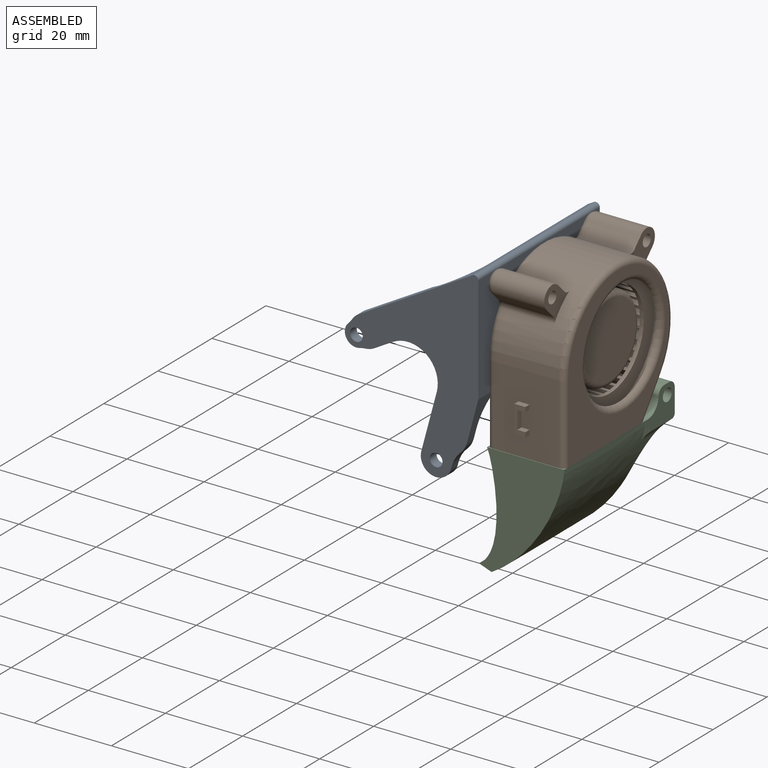
[diagram: assembled view]
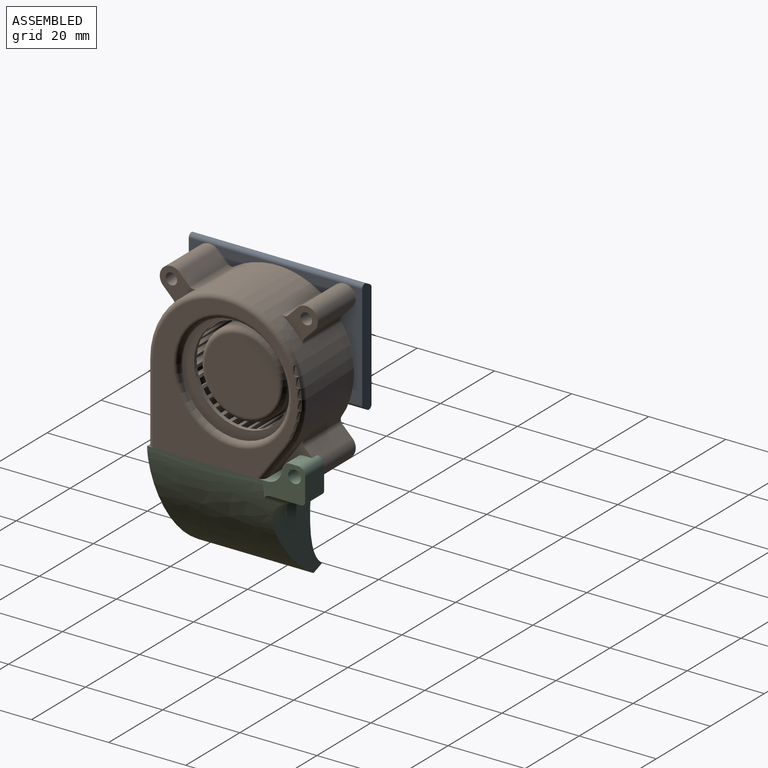
[diagram: assembled view, second angle]
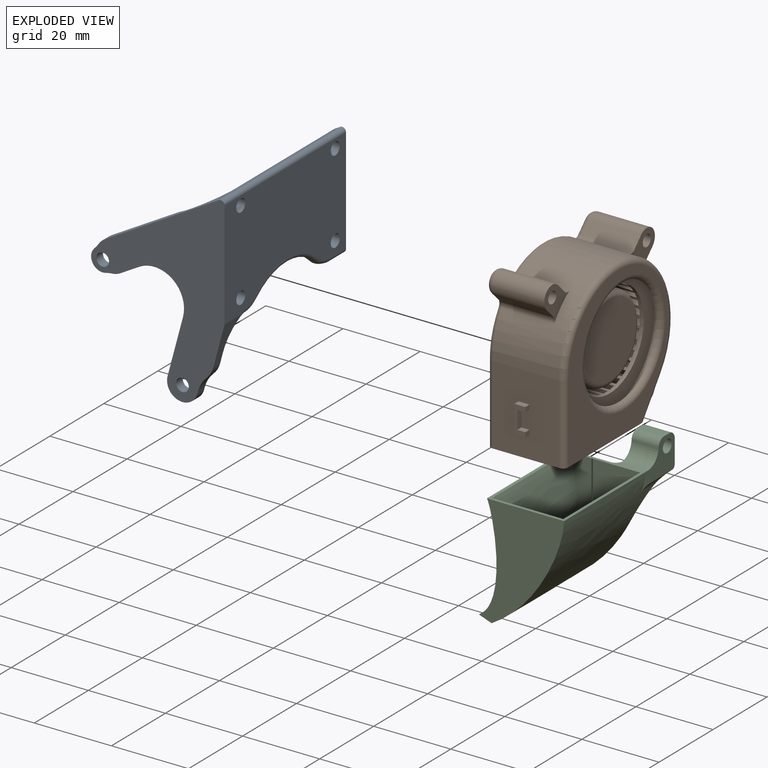
[diagram: exploded view]
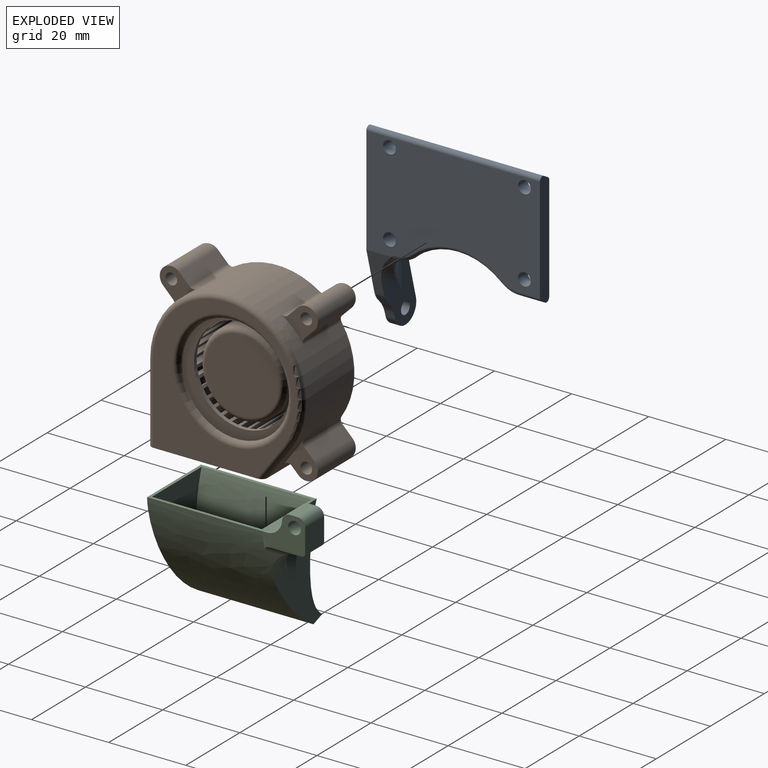
[diagram: exploded view, second angle]
ASSEMBLY  parts=3 mates=2
PART A: 46 faces, bbox 41.4x45.4x41.9 mm
  f0: plane 36.5x23.66mm, normal (-0.87,0,0.5), area 846.3mm2, adj f4,f16,f20,f21,f31,f32,f33,f34
  f1: plane 5.95x1.69mm, normal (0,0,-1), area 9.4mm2, adj f16,f23,f31,f37
  f2: plane 45x34.08mm, normal (0,0,1), area 158.3mm2, adj f5,f15,f16,f25,f43,f44,f45
  f3: plane 45x24.04mm, normal (0.87,0,-0.5), area 1087.5mm2, adj f15,f16,f18,f19,f20,f21,f37,f38
  f4: cylinder r=6mm len=37.16mm, axis (-0.5,0,-0.87), area 266.9mm2, adj f0,f5,f18,f19,f35,f36,f44
  f5: plane 39.15x30.45mm, normal (0,1,0), area 367.9mm2, adj f2,f4,f6,f7,f8,f9,f10,f11
  f6: cylinder r=3mm len=5.8mm, axis (0,1,0), area 19.7mm2, adj f5,f15,f27,f28
  f7: plane 5.65x2.5mm, normal (0,0,-1), area 14.1mm2, adj f5,f8,f15,f26
  f8: cylinder r=7.74mm len=13.22mm, axis (0,1,0), area 45.6mm2, adj f5,f7,f9,f15
  f9: plane 10.95x10.95mm, normal (-0.71,0,0.71), area 38.7mm2, adj f5,f8,f10,f15
  f10: cylinder r=4mm len=6.83mm, axis (0,1,0), area 31.4mm2, adj f5,f9,f11,f15
  f11: plane 2.5x0.49mm, normal (0.71,0,-0.71), area 1.7mm2, adj f5,f10,f15,f29
  f12: plane 8.2x8.2mm, normal (0.71,0,-0.71), area 37.5mm2, adj f5,f15,f17,f30,f40,f42
  f13: cylinder r=1.65mm len=3.3mm, axis (0,1,0), area 25.9mm2, adj f5,f15
  f14: cylinder r=1.65mm len=3.3mm, axis (0,1,0), area 25.9mm2, adj f5,f15
  f15: plane 41.08x39mm, normal (0,-1,0), area 707.4mm2, adj f2,f3,f6,f7,f8,f9,f10,f11
  f16: plane 25.66x17.35mm, normal (0,1,0), area 101.2mm2, adj f0,f1,f2,f3,f31,f37,f43,f45
  f17: cylinder r=6mm len=13.81mm, axis (1,0,0), area 38.3mm2, adj f5,f12,f24,f36,f42
  f18: cylinder r=1.65mm len=6.07mm, axis (0.87,0,-0.5), area 43.7mm2, adj f3,f4,f44
  f19: cylinder r=1.65mm len=5.12mm, axis (0.87,0,-0.5), area 41.6mm2, adj f3,f4
  f20: cylinder r=1.65mm len=4.65mm, axis (0.87,0,-0.5), area 35.9mm2, adj f0,f3,f43
  f21: cylinder r=1.65mm len=4.65mm, axis (0.87,0,-0.5), area 35.9mm2, adj f0,f3
  f22: cylinder r=16.95mm len=23.54mm, axis (0.87,0,-0.5), area 36.7mm2, adj f23,f24,f33,f39
  f23: bspline ~12.23x8.27mm, area 8.2mm2, adj f1,f22,f32,f38
  f24: bspline ~10.38x6.29mm, area 7.8mm2, adj f17,f22,f34,f35,f41
  f25: cylinder r=5mm len=2.5mm, axis (0,1,0), area 5.8mm2, adj f2,f5,f15,f27
  f26: cylinder r=5mm len=2.5mm, axis (0,1,0), area 5.8mm2, adj f5,f7,f15,f28
  f27: cylinder r=8mm len=2.5mm, axis (0,-1,0), area 4.1mm2, adj f5,f6,f15,f25
  f28: cylinder r=8mm len=2.5mm, axis (0,-1,0), area 4.1mm2, adj f5,f6,f15,f26
  f29: cylinder r=8mm len=3.85mm, axis (0,-1,0), area 11.2mm2, adj f5,f11,f15,f30
  f30: cylinder r=6mm len=2.89mm, axis (0,-1,0), area 8.4mm2, adj f5,f12,f15,f29
  f31: cylinder r=1mm len=5.15mm, axis (0,-1,0), area 10.8mm2, adj f0,f1,f16,f32
  f32: bspline ~6.8x3.98mm, area 9mm2, adj f0,f23,f31,f33
  f33: torus R=17.95mm, axis (0.87,0,-0.5), area 41.7mm2, adj f0,f22,f32,f34
  f34: bspline ~4.86x3.58mm, area 5.9mm2, adj f0,f24,f33,f35
  f35: bspline ~3.83x2.41mm, area 2mm2, adj f4,f24,f34,f36
  f36: bspline ~12.11x7.49mm, area 8.9mm2, adj f4,f17,f35
  f37: cylinder r=1mm len=5.95mm, axis (0,1,0), area 6.2mm2, adj f1,f3,f16,f38
  f38: bspline ~6.29x2.41mm, area 6mm2, adj f3,f23,f37,f39
  f39: torus R=17.95mm, axis (0.87,0,-0.5), area 38.7mm2, adj f3,f22,f38,f41
  f40: cylinder r=1mm len=6.26mm, axis (0,-1,0), area 1.6mm2, adj f3,f12,f15,f42
  f41: bspline ~5.25x1.98mm, area 5.7mm2, adj f3,f24,f39,f42
  f42: bspline ~4.65x2.3mm, area 2.9mm2, adj f3,f12,f17,f40,f41
  f43: cylinder r=1mm len=36.5mm, axis (0,1,0), area 38mm2, adj f0,f2,f16,f20,f44
  f44: bspline ~13.28x7.31mm, area 15.7mm2, adj f2,f4,f5,f18,f43
  f45: cylinder r=1mm len=45mm, axis (0,-1,0), area 94.2mm2, adj f2,f3,f15,f16
PART B: 208 faces, bbox 44x43.6x20.4 mm
  f0: cylinder r=5mm len=10mm, axis (0,0,-1), area 31.4mm2, adj f11,f59
  f1: plane 17.2x8.54mm, normal (0.8,-0.59,0), area 78mm2, adj f2,f3,f26,f27,f28,f55
  f2: cylinder r=20.14mm len=40.27mm, axis (0,0,-1), area 1067.4mm2, adj f1,f4,f16,f21,f26,f33,f35,f36
  f3: plane 30.46x20.43mm, normal (0,-1,0), area 136.2mm2, adj f1,f4,f5,f6,f7,f8,f10,f11
  f4: plane 20.5x17.2mm, normal (-1,0,0), area 341.9mm2, adj f2,f3,f42,f53,f199,f200,f201,f202
  f5: plane 39.24x37.47mm, normal (0,0,1), area 494.7mm2, adj f3,f53,f54,f55,f56
  f6: plane 39.6x38.2mm, normal (0,0,-1), area 1295.8mm2, adj f3,f14,f20,f25,f27,f29,f30,f31
  f7: plane 20.5x17.2mm, normal (1,0,0), area 352.6mm2, adj f3,f9,f10,f11
  f8: plane 17.2x9.37mm, normal (-0.8,0.59,0), area 200.4mm2, adj f3,f9,f10,f11
  f9: cylinder r=18.74mm len=37.47mm, axis (0,0,-1), area 1217.2mm2, adj f7,f8,f10,f11
  f10: plane 39.24x37.47mm, normal (0,0,-1), area 624mm2, adj f3,f7,f8,f9,f56
  f11: plane 39.24x37.47mm, normal (0,0,1), area 1161.2mm2, adj f0,f3,f7,f8,f9
  f12: plane 13.6x2.59mm, normal (-0.71,-0.71,0), area 49.9mm2, adj f15,f16,f44,f50
  f13: plane 13.6x2.59mm, normal (0.71,0.71,0), area 49.9mm2, adj f15,f16,f47,f51
  f14: cylinder r=1.5mm len=15mm, axis (0,0,-1), area 141.4mm2, adj f6,f16
  f15: cylinder r=3mm len=13.6mm, axis (0,0,-1), area 128.2mm2, adj f12,f13,f16,f52
  f16: plane 9.47x9.47mm, normal (0,0,1), area 35.7mm2, adj f2,f12,f13,f14,f15,f44,f47
  f17: plane 13.6x2.59mm, normal (-0.71,0.71,0), area 49.9mm2, adj f19,f21,f40,f41
  f18: plane 13.6x2.59mm, normal (0.71,-0.71,0), area 49.9mm2, adj f19,f21,f36,f38
  f19: cylinder r=3mm len=13.6mm, axis (0,0,-1), area 128.2mm2, adj f17,f18,f21,f39
  f20: cylinder r=1.5mm len=15mm, axis (0,0,-1), area 141.4mm2, adj f6,f21
  f21: plane 9.47x9.47mm, normal (0,0,1), area 35.7mm2, adj f2,f17,f18,f19,f20,f36,f41
  f22: cylinder r=3mm len=13.6mm, axis (0,0,-1), area 128.2mm2, adj f23,f24,f26,f31
  f23: plane 13.6x2.59mm, normal (0.71,0.71,0), area 49.9mm2, adj f22,f26,f32,f33
  f24: plane 13.6x1.63mm, normal (-0.71,-0.71,0), area 31.4mm2, adj f22,f26,f28,f30
  f25: cylinder r=1.5mm len=15mm, axis (0,0,-1), area 141.4mm2, adj f6,f26
  f26: plane 9.47x8.87mm, normal (0,0,1), area 34.3mm2, adj f1,f2,f22,f23,f24,f25,f28,f33
  f27: cylinder r=1.4mm len=4.01mm, axis (0.59,0.8,0), area 7.6mm2, adj f1,f3,f6,f29
  f28: cylinder r=1.4mm len=13.6mm, axis (0,0,1), area 32.8mm2, adj f1,f24,f26,f29
  f29: torus R=2.8mm, axis (0,0,1), area 7.2mm2, adj f6,f27,f28,f30
  f30: cylinder r=1.4mm len=2.62mm, axis (0.71,-0.71,0), area 5.1mm2, adj f6,f24,f29,f31
  f31: torus R=1.6mm, axis (0,0,1), area 17.2mm2, adj f6,f22,f30,f32
  f32: cylinder r=1.4mm len=3.58mm, axis (-0.71,0.71,0), area 8.1mm2, adj f6,f23,f31,f34
  f33: cylinder r=1.4mm len=13.6mm, axis (0,0,-1), area 26mm2, adj f2,f23,f26,f34
  f34: torus R=2.8mm, axis (0,0,1), area 5.7mm2, adj f6,f32,f33,f35
  f35: torus R=18.74mm, axis (0,0,1), area 50mm2, adj f2,f6,f34,f37
  f36: cylinder r=1.4mm len=13.6mm, axis (0,0,-1), area 26mm2, adj f2,f18,f21,f37
  f37: torus R=2.8mm, axis (0,0,1), area 5.7mm2, adj f6,f35,f36,f38
  f38: cylinder r=1.4mm len=3.58mm, axis (0.71,0.71,0), area 8.1mm2, adj f6,f18,f37,f39
  f39: torus R=1.6mm, axis (0,0,1), area 17.2mm2, adj f6,f19,f38,f40
  f40: cylinder r=1.4mm len=3.58mm, axis (-0.71,-0.71,0), area 8.1mm2, adj f6,f17,f39,f43
  f41: cylinder r=1.4mm len=13.6mm, axis (0,0,-1), area 26mm2, adj f2,f17,f21,f43
  f42: cylinder r=1.4mm len=20.5mm, axis (0,-1,0), area 45.1mm2, adj f3,f4,f6,f45
  f43: torus R=2.8mm, axis (0,0,1), area 5.7mm2, adj f6,f40,f41,f46
  f44: cylinder r=1.4mm len=13.6mm, axis (0,0,-1), area 26mm2, adj f2,f12,f16,f48
  f45: torus R=18.74mm, axis (0,0,1), area 25mm2, adj f2,f6,f42,f48
  f46: torus R=18.74mm, axis (0,0,1), area 50mm2, adj f2,f6,f43,f49
  f47: cylinder r=1.4mm len=13.6mm, axis (0,0,-1), area 26mm2, adj f2,f13,f16,f49
  f48: torus R=2.8mm, axis (0,0,1), area 5.7mm2, adj f6,f44,f45,f50
  f49: torus R=2.8mm, axis (0,0,1), area 5.7mm2, adj f6,f46,f47,f51
  f50: cylinder r=1.4mm len=3.58mm, axis (0.71,-0.71,0), area 8.1mm2, adj f6,f12,f48,f52
  f51: cylinder r=1.4mm len=3.58mm, axis (-0.71,0.71,0), area 8.1mm2, adj f6,f13,f49,f52
  f52: torus R=1.6mm, axis (0,0,1), area 17.2mm2, adj f6,f15,f50,f51
  f53: cylinder r=1.4mm len=20.5mm, axis (0,1,0), area 45.1mm2, adj f3,f4,f5,f54
  f54: torus R=18.74mm, axis (0,0,1), area 163mm2, adj f2,f5,f53,f55
  f55: cylinder r=1.4mm len=10.21mm, axis (-0.59,-0.8,0), area 24.5mm2, adj f1,f3,f5,f54
  f56: torus R=15.4mm, axis (0,0,1), area 200.5mm2, adj f5,f10
  f57: cylinder r=16.5mm len=33mm, axis (0,0,-1), area 103.7mm2, adj f58,f59
  f58: plane 33x33mm, normal (0,0,1), area 382mm2, adj f57,f60,f63,f64,f65,f66,f67,f68
  f59: plane 33x33mm, normal (0,0,-1), area 776.8mm2, adj f0,f57
  f60: cylinder r=11mm len=22mm, axis (0,0,-1), area 801.7mm2, adj f58,f62
  f61: plane 19.2x19.2mm, normal (0,0,1), area 289.5mm2, adj f62
  f62: torus R=9.6mm, axis (0,0,1), area 145mm2, adj f60,f61
  f63: cylinder r=10mm len=12mm, axis (0,0,-1), area 45.6mm2, adj f58,f64,f66,f198
  f64: plane 12.01x0.76mm, normal (-1,-0.03,0), area 9mm2, adj f58,f63,f65,f195
  f65: cylinder r=10mm len=12mm, axis (0,0,-1), area 45.9mm2, adj f58,f64,f66,f198
  f66: plane 12x0.75mm, normal (1,0.07,0), area 9mm2, adj f58,f63,f65,f198
  f67: cylinder r=10mm len=12mm, axis (0,0,-1), area 45.6mm2, adj f58,f68,f70,f198
  f68: plane 12.01x0.74mm, normal (-0.98,-0.22,0), area 9mm2, adj f58,f67,f69,f195
  f69: cylinder r=10mm len=12mm, axis (0,0,-1), area 45.9mm2, adj f58,f68,f70,f198
  f70: plane 12x0.73mm, normal (0.97,0.26,0), area 9mm2, adj f58,f67,f69,f198
  f71: cylinder r=10mm len=12mm, axis (0,0,-1), area 45.6mm2, adj f58,f72,f74,f198
  f72: plane 12.01x0.7mm, normal (-0.92,-0.4,0), area 9mm2, adj f58,f71,f73,f195
  f73: cylinder r=10mm len=12mm, axis (0,0,-1), area 45.9mm2, adj f58,f72,f74,f198
  f74: plane 12x0.68mm, normal (0.9,0.43,0), area 9mm2, adj f58,f71,f73,f198
  f75: cylinder r=10mm len=12mm, axis (0,0,-1), area 45.6mm2, adj f58,f76,f78,f198
  f76: plane 12.01x0.63mm, normal (-0.82,-0.57,0), area 9mm2, adj f58,f75,f77,f195
  f77: cylinder r=10mm len=12mm, axis (0,0,-1), area 45.9mm2, adj f58,f76,f78,f198
  f78: plane 12x0.6mm, normal (0.8,0.6,0), area 9mm2, adj f58,f75,f77,f198
  f79: cylinder r=10mm len=12mm, axis (0,0,-1), area 45.6mm2, adj f58,f80,f82,f198
  f80: plane 12.01x0.55mm, normal (-0.7,-0.71,0), area 9mm2, adj f58,f79,f81,f195
  f81: cylinder r=10mm len=12mm, axis (0,0,-1), area 45.9mm2, adj f58,f80,f82,f198
  f82: plane 12x0.55mm, normal (0.68,0.74,0), area 9mm2, adj f58,f79,f81,f198
  f83: cylinder r=10mm len=12mm, axis (0,0,-1), area 45.6mm2, adj f58,f84,f86,f198
  f84: plane 12.01x0.64mm, normal (-0.56,-0.83,0), area 9mm2, adj f58,f83,f85,f195
  f85: cylinder r=10mm len=12mm, axis (0,0,-1), area 45.9mm2, adj f58,f84,f86,f198
  f86: plane 12x0.64mm, normal (0.52,0.85,0), area 9mm2, adj f58,f83,f85,f198
  f87: cylinder r=10mm len=12mm, axis (0,0,-1), area 45.6mm2, adj f58,f88,f90,f198
  f88: plane 12.01x0.7mm, normal (-0.39,-0.92,0), area 9mm2, adj f58,f87,f89,f195
  f89: cylinder r=10mm len=12mm, axis (0,0,-1), area 45.9mm2, adj f58,f88,f90,f198
  f90: plane 12x0.7mm, normal (0.35,0.94,0), area 9mm2, adj f58,f87,f89,f198
  f91: cylinder r=10mm len=12mm, axis (0,0,-1), area 45.6mm2, adj f58,f92,f94,f198
  f92: plane 12.01x0.75mm, normal (-0.21,-0.98,0), area 9mm2, adj f58,f91,f93,f195
  f93: cylinder r=10mm len=12mm, axis (0,0,-1), area 45.9mm2, adj f58,f92,f94,f198
  f94: plane 12x0.74mm, normal (0.17,0.99,0), area 9mm2, adj f58,f91,f93,f198
  f95: cylinder r=10mm len=12mm, axis (0,0,-1), area 45.6mm2, adj f58,f96,f98,f198
  f96: plane 12.01x0.76mm, normal (-0.02,-1,0), area 9mm2, adj f58,f95,f97,f195
  f97: cylinder r=10mm len=12mm, axis (0,0,-1), area 45.9mm2, adj f58,f96,f98,f198
  f98: plane 12x0.75mm, normal (-0.02,1,0), area 9mm2, adj f58,f95,f97,f198
  f99: cylinder r=10mm len=12mm, axis (0,0,-1), area 45.6mm2, adj f58,f100,f102,f198
  f100: plane 12.01x0.75mm, normal (0.17,-0.99,0), area 9mm2, adj f58,f99,f101,f195
  f101: cylinder r=10mm len=12mm, axis (0,0,-1), area 45.9mm2, adj f58,f100,f102,f198
  f102: plane 12x0.73mm, normal (-0.21,0.98,0), area 9mm2, adj f58,f99,f101,f198
  f103: cylinder r=10mm len=12mm, axis (0,0,-1), area 45.6mm2, adj f58,f104,f106,f198
  f104: plane 12.01x0.71mm, normal (0.36,-0.93,0), area 9mm2, adj f58,f103,f105,f195
  f105: cylinder r=10mm len=12mm, axis (0,0,-1), area 45.9mm2, adj f58,f104,f106,f198
  f106: plane 12x0.69mm, normal (-0.39,0.92,0), area 9mm2, adj f58,f103,f105,f198
  f107: cylinder r=10mm len=12mm, axis (0,0,-1), area 45.6mm2, adj f58,f108,f110,f198
  f108: plane 12.01x0.65mm, normal (0.53,-0.85,0), area 9mm2, adj f58,f107,f109,f195
  f109: cylinder r=10mm len=12mm, axis (0,0,-1), area 45.9mm2, adj f58,f108,f110,f198
  f110: plane 12x0.62mm, normal (-0.56,0.83,0), area 9mm2, adj f58,f107,f109,f198
  f111: cylinder r=10mm len=12mm, axis (0,0,-1), area 45.6mm2, adj f58,f112,f114,f198
  f112: plane 12.01x0.56mm, normal (0.68,-0.74,0), area 9mm2, adj f58,f111,f113,f195
  f113: cylinder r=10mm len=12mm, axis (0,0,-1), area 45.9mm2, adj f58,f112,f114,f198
  f114: plane 12x0.53mm, normal (-0.7,0.71,0), area 9mm2, adj f58,f111,f113,f198
  f115: cylinder r=10mm len=12mm, axis (0,0,-1), area 45.6mm2, adj f58,f116,f118,f198
  f116: plane 12.01x0.61mm, normal (0.8,-0.59,0), area 9mm2, adj f58,f115,f117,f195
  f117: cylinder r=10mm len=12mm, axis (0,0,-1), area 45.9mm2, adj f58,f116,f118,f198
  f118: plane 12x0.62mm, normal (-0.83,0.56,0), area 9mm2, adj f58,f115,f117,f198
  f119: cylinder r=10mm len=12mm, axis (0,0,-1), area 45.6mm2, adj f58,f120,f122,f198
  f120: plane 12.01x0.69mm, normal (0.9,-0.43,0), area 9mm2, adj f58,f119,f121,f195
  f121: cylinder r=10mm len=12mm, axis (0,0,-1), area 45.9mm2, adj f58,f120,f122,f198
  f122: plane 12x0.69mm, normal (-0.92,0.4,0), area 9mm2, adj f58,f119,f121,f198
  f123: cylinder r=10mm len=12mm, axis (0,0,-1), area 45.6mm2, adj f58,f124,f126,f198
  f124: plane 12.01x0.74mm, normal (0.97,-0.25,0), area 9mm2, adj f58,f123,f125,f195
  f125: cylinder r=10mm len=12mm, axis (0,0,-1), area 45.9mm2, adj f58,f124,f126,f198
  f126: plane 12x0.73mm, normal (-0.98,0.22,0), area 9mm2, adj f58,f123,f125,f198
  f127: cylinder r=10mm len=12mm, axis (0,0,-1), area 45.6mm2, adj f58,f128,f130,f198
  f128: plane 12.01x0.76mm, normal (1,-0.07,0), area 9mm2, adj f58,f127,f129,f195
  f129: cylinder r=10mm len=12mm, axis (0,0,-1), area 45.9mm2, adj f58,f128,f130,f198
  f130: plane 12x0.75mm, normal (-1,0.03,0), area 9mm2, adj f58,f127,f129,f198
  f131: cylinder r=10mm len=12mm, axis (0,0,-1), area 45.6mm2, adj f58,f132,f134,f198
  f132: plane 12.01x0.76mm, normal (0.99,0.12,0), area 9mm2, adj f58,f131,f133,f195
  f133: cylinder r=10mm len=12mm, axis (0,0,-1), area 45.9mm2, adj f58,f132,f134,f198
  f134: plane 12x0.74mm, normal (-0.99,-0.16,0), area 9mm2, adj f58,f131,f133,f198
  f135: cylinder r=10mm len=12mm, axis (0,0,-1), area 45.6mm2, adj f58,f136,f138,f198
  f136: plane 12.01x0.72mm, normal (0.95,0.31,0), area 9mm2, adj f58,f135,f137,f195
  f137: cylinder r=10mm len=12mm, axis (0,0,-1), area 45.9mm2, adj f58,f136,f138,f198
  f138: plane 12x0.7mm, normal (-0.94,-0.35,0), area 9mm2, adj f58,f135,f137,f198
  f139: cylinder r=10mm len=12mm, axis (0,0,-1), area 45.6mm2, adj f58,f140,f142,f198
  f140: plane 12.01x0.67mm, normal (0.87,0.48,0), area 9mm2, adj f58,f139,f141,f195
  f141: cylinder r=10mm len=12mm, axis (0,0,-1), area 45.9mm2, adj f58,f140,f142,f198
  f142: plane 12x0.64mm, normal (-0.86,-0.52,0), area 9mm2, adj f58,f139,f141,f198
  f143: cylinder r=10mm len=12mm, axis (0,0,-1), area 45.6mm2, adj f58,f144,f146,f198
  f144: plane 12.01x0.59mm, normal (0.77,0.64,0), area 9mm2, adj f58,f143,f145,f195
  f145: cylinder r=10mm len=12mm, axis (0,0,-1), area 45.9mm2, adj f58,f144,f146,f198
  f146: plane 12x0.56mm, normal (-0.74,-0.67,0), area 9mm2, adj f58,f143,f145,f198
  f147: cylinder r=10mm len=12mm, axis (0,0,-1), area 45.6mm2, adj f58,f148,f150,f198
  f148: plane 12.01x0.59mm, normal (0.63,0.78,0), area 9mm2, adj f58,f147,f149,f195
  f149: cylinder r=10mm len=12mm, axis (0,0,-1), area 45.9mm2, adj f58,f148,f150,f198
  f150: plane 12x0.6mm, normal (-0.6,-0.8,0), area 9mm2, adj f58,f147,f149,f198
  f151: cylinder r=10mm len=12mm, axis (0,0,-1), area 45.6mm2, adj f58,f152,f154,f198
  f152: plane 12.01x0.67mm, normal (0.47,0.88,0), area 9mm2, adj f58,f151,f153,f195
  f153: cylinder r=10mm len=12mm, axis (0,0,-1), area 45.9mm2, adj f58,f152,f154,f198
  f154: plane 12x0.67mm, normal (-0.44,-0.9,0), area 9mm2, adj f58,f151,f153,f198
  f155: cylinder r=10mm len=12mm, axis (0,0,-1), area 45.6mm2, adj f58,f156,f158,f198
  f156: plane 12.01x0.73mm, normal (0.3,0.95,0), area 9mm2, adj f58,f155,f157,f195
  f157: cylinder r=10mm len=12mm, axis (0,0,-1), area 45.9mm2, adj f58,f156,f158,f198
  f158: plane 12x0.72mm, normal (-0.26,-0.96,0), area 9mm2, adj f58,f155,f157,f198
  f159: cylinder r=10mm len=12mm, axis (0,0,-1), area 45.6mm2, adj f58,f160,f162,f198
  f160: plane 12.01x0.76mm, normal (0.11,0.99,0), area 9mm2, adj f58,f159,f161,f195
  f161: cylinder r=10mm len=12mm, axis (0,0,-1), area 45.9mm2, adj f58,f160,f162,f198
  f162: plane 12x0.75mm, normal (-0.08,-1,0), area 9mm2, adj f58,f159,f161,f198
  f163: cylinder r=10mm len=12mm, axis (0,0,-1), area 45.6mm2, adj f58,f164,f166,f198
  f164: plane 12.01x0.76mm, normal (-0.08,1,0), area 9mm2, adj f58,f163,f165,f195
  f165: cylinder r=10mm len=12mm, axis (0,0,-1), area 45.9mm2, adj f58,f164,f166,f198
  f166: plane 12x0.75mm, normal (0.11,-0.99,0), area 9mm2, adj f58,f163,f165,f198
  f167: cylinder r=10mm len=12mm, axis (0,0,-1), area 45.6mm2, adj f58,f168,f170,f198
  f168: plane 12.01x0.73mm, normal (-0.26,0.96,0), area 9mm2, adj f58,f167,f169,f195
  f169: cylinder r=10mm len=12mm, axis (0,0,-1), area 45.9mm2, adj f58,f168,f170,f198
  f170: plane 12x0.72mm, normal (0.3,-0.95,0), area 9mm2, adj f58,f167,f169,f198
  f171: cylinder r=10mm len=12mm, axis (0,0,-1), area 45.6mm2, adj f58,f172,f174,f198
  f172: plane 12.01x0.68mm, normal (-0.44,0.9,0), area 9mm2, adj f58,f171,f173,f195
  f173: cylinder r=10mm len=12mm, axis (0,0,-1), area 45.9mm2, adj f58,f172,f174,f198
  f174: plane 12x0.66mm, normal (0.48,-0.88,0), area 9mm2, adj f58,f171,f173,f198
  f175: cylinder r=10mm len=12mm, axis (0,0,-1), area 45.6mm2, adj f58,f176,f178,f198
  f176: plane 12.01x0.61mm, normal (-0.6,0.8,0), area 9mm2, adj f58,f175,f177,f195
  f177: cylinder r=10mm len=12mm, axis (0,0,-1), area 45.9mm2, adj f58,f176,f178,f198
  f178: plane 12x0.58mm, normal (0.63,-0.77,0), area 9mm2, adj f58,f175,f177,f198
  f179: cylinder r=10mm len=12mm, axis (0,0,-1), area 45.6mm2, adj f58,f180,f182,f198
  f180: plane 12.01x0.57mm, normal (-0.74,0.67,0), area 9mm2, adj f58,f179,f181,f195
  f181: cylinder r=10mm len=12mm, axis (0,0,-1), area 45.9mm2, adj f58,f180,f182,f198
  f182: plane 12x0.58mm, normal (0.77,-0.64,0), area 9mm2, adj f58,f179,f181,f198
  f183: cylinder r=10mm len=12mm, axis (0,0,-1), area 45.6mm2, adj f58,f184,f186,f198
  f184: plane 12.01x0.65mm, normal (-0.86,0.52,0), area 9mm2, adj f58,f183,f185,f195
  f185: cylinder r=10mm len=12mm, axis (0,0,-1), area 45.9mm2, adj f58,f184,f186,f198
  f186: plane 12x0.66mm, normal (0.88,-0.48,0), area 9mm2, adj f58,f183,f185,f198
  f187: cylinder r=10mm len=12mm, axis (0,0,-1), area 45.6mm2, adj f58,f188,f190,f198
  f188: plane 12.01x0.72mm, normal (-0.94,0.34,0), area 9mm2, adj f58,f187,f189,f195
  f189: cylinder r=10mm len=12mm, axis (0,0,-1), area 45.9mm2, adj f58,f188,f190,f198
  f190: plane 12x0.71mm, normal (0.95,-0.31,0), area 9mm2, adj f58,f187,f189,f198
  f191: cylinder r=10mm len=12mm, axis (0,0,-1), area 45.6mm2, adj f58,f192,f194,f198
  f192: plane 12.01x0.75mm, normal (-0.99,0.16,0), area 9mm2, adj f58,f191,f193,f195
  f193: cylinder r=10mm len=12mm, axis (0,0,-1), area 45.9mm2, adj f58,f192,f194,f198
  f194: plane 12x0.74mm, normal (0.99,-0.12,0), area 9mm2, adj f58,f191,f193,f198
  f195: cylinder r=12.5mm len=25mm, axis (0,0,-1), area 78.5mm2, adj f64,f68,f72,f76,f80,f84,f88,f92
  f196: cylinder r=16.5mm len=33mm, axis (0,0,-1), area 103.7mm2, adj f197,f198
  f197: plane 33x33mm, normal (0,0,1), area 364.4mm2, adj f195,f196
  f198: plane 33.01x33.01mm, normal (0,0,-1), area 271.3mm2, adj f63,f65,f66,f67,f69,f70,f71,f73
  f199: plane 1.52x1.25mm, normal (0,0,1), area 1.9mm2, adj f4,f200,f206,f207
  f200: plane 2.85x1.52mm, normal (0,1,0), area 4.3mm2, adj f4,f199,f201,f207
  f201: plane 7.14x1.52mm, normal (0,0,-1), area 10.9mm2, adj f4,f200,f202,f207
  f202: plane 2.85x1.52mm, normal (0,-1,0), area 4.3mm2, adj f4,f201,f203,f207
  f203: plane 1.52x1.25mm, normal (0,0,1), area 1.9mm2, adj f4,f202,f204,f207
  f204: plane 2.08x1.52mm, normal (0,1,0), area 3.2mm2, adj f4,f203,f205,f207
  f205: plane 4.65x1.52mm, normal (0,0,1), area 7.1mm2, adj f4,f204,f206,f207
  f206: plane 2.08x1.52mm, normal (0,-1,0), area 3.2mm2, adj f4,f199,f205,f207
  f207: plane 7.14x2.85mm, normal (-1,0,0), area 10.7mm2, adj f199,f200,f201,f202,f203,f204,f205,f206
PART C: 23 faces, bbox 39.8x44.9x29.6 mm
  f0: plane 30x2.68mm, normal (-0.77,0,-0.64), area 60.1mm2, adj f2,f3,f4,f5,f6,f7,f8,f9
  f1: plane 31.01x17.32mm, normal (0.5,0,0.87), area 83.1mm2, adj f2,f3,f4,f5,f6,f7,f8,f9
  f2: extruded ~34.48x30.75mm, area 1090.9mm2, adj f0,f1,f4,f5,f15,f16,f21
  f3: extruded ~30x23mm, area 882.9mm2, adj f0,f1,f4,f5
  f4: plane 33x25.68mm, normal (0,-1,0), area 356.1mm2, adj f0,f1,f2,f3
  f5: plane 25.68x25.21mm, normal (0,1,0), area 257.9mm2, adj f0,f1,f2,f3,f16,f22
  f6: extruded ~30.73x28.5mm, area 1013.5mm2, adj f0,f1,f8,f9
  f7: extruded ~28.5x23.3mm, area 843mm2, adj f0,f1,f8,f9
  f8: plane 35.69x28.46mm, normal (0,1,0), area 307.3mm2, adj f0,f1,f6,f7
  f9: plane 35.69x28.46mm, normal (0,-1,0), area 307.3mm2, adj f0,f1,f6,f7
  f10: plane 6.06x3.5mm, normal (0.5,0,0.87), area 14mm2, adj f13,f14,f17,f18
  f11: plane 9.06x8.7mm, normal (0,1,0), area 42mm2, adj f13,f14,f18,f20
  f12: cylinder r=1.65mm len=7.71mm, axis (0.87,0,-0.5), area 72.6mm2, adj f13,f14
  f13: plane 11.26x9mm, normal (-0.87,0,0.5), area 66.3mm2, adj f10,f11,f12,f16,f17,f18,f19,f20
  f14: plane 11x7.8mm, normal (0.87,0,-0.5), area 59.1mm2, adj f1,f10,f11,f12,f15,f17,f18,f19
  f15: bspline ~3.84x3.16mm, area 3.8mm2, adj f2,f14,f21
  f16: cylinder r=10mm len=13.16mm, axis (0.87,0,-0.5), area 89.2mm2, adj f2,f5,f13,f20,f21,f22
  f17: cylinder r=2mm len=7.02mm, axis (0.87,0,-0.5), area 21.4mm2, adj f10,f13,f14,f19
  f18: cylinder r=2mm len=7.06mm, axis (0.87,0,-0.5), area 22mm2, adj f10,f11,f13,f14
  f19: cylinder r=4mm len=8.21mm, axis (0.87,0,-0.5), area 42.9mm2, adj f1,f13,f14,f17,f22
  f20: cylinder r=1mm len=6.56mm, axis (0.87,0,-0.5), area 11mm2, adj f11,f13,f14,f16
  f21: cylinder r=5mm len=10mm, axis (0,1,0), area 11.4mm2, adj f2,f14,f15,f16
  f22: cylinder r=2mm len=12.58mm, axis (-0.5,0,-0.87), area 32.3mm2, adj f1,f5,f13,f16,f19
PLACE A rot(axis=(0,-1,0),30deg) t=(-13.51,0,-7.72)mm
PLACE B rot(axis=(0.58,0.58,0.58),120deg) t=(0,22.25,19)mm
PLACE C rot(axis=(0,-1,0),30deg) t=(-8.58,16.96,-18)mm
MATE fastened A.f18 <-> B.f14  axis (1,0,0) through (0,4.75,36.5)mm
MATE fastened C.f1 <-> B.f3  axis (0,0,1) through (20,16.96,-1.5)mm
